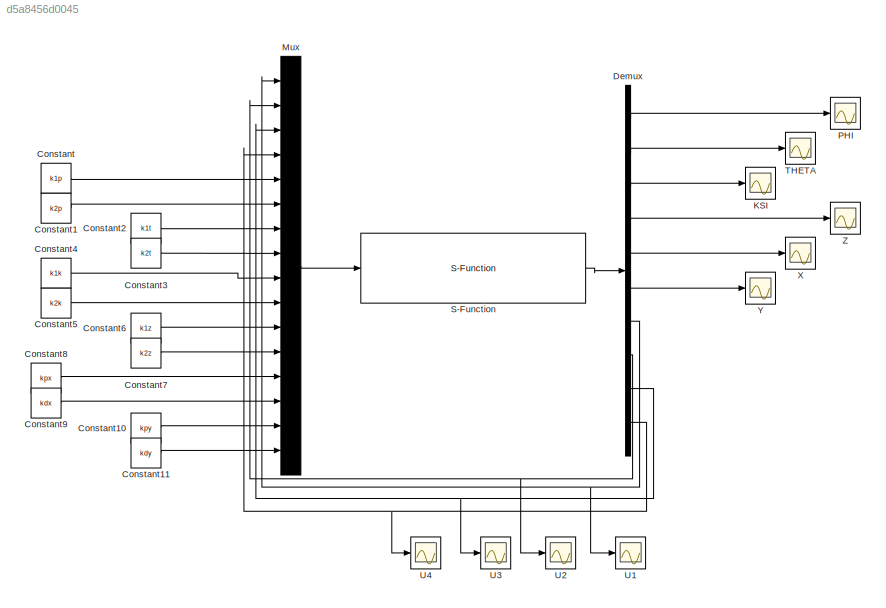
MODEL slx_d5a8456d0045
KIND model
CONFIG AbsTol = auto
CONFIG FixedStep = auto
CONFIG MaxStep = auto
CONFIG MinStep = auto
CONFIG RelTol = 1e-3
CONFIG SampleTimeConstraint = Unconstrained
CONFIG Solver = ode45
CONFIG SolverMode = Auto
CONFIG SolverName = ode45
CONFIG StartTime = 0.0
CONFIG StopTime = 15
BLOCK [Constant] Constant
  Value = k1p
BLOCK [Constant] Constant1
  Value = k2p
BLOCK [Constant] Constant10
  Value = kpy
BLOCK [Constant] Constant11
  Value = kdy
BLOCK [Constant] Constant2
  Value = k1t
BLOCK [Constant] Constant3
  Value = k2t
BLOCK [Constant] Constant4
  Value = k1k
BLOCK [Constant] Constant5
  Value = k2k
BLOCK [Constant] Constant6
  Value = k1z
BLOCK [Constant] Constant7
  Value = k2z
BLOCK [Constant] Constant8
  Value = kpx
BLOCK [Constant] Constant9
  Value = kdx
BLOCK [Demux] Demux
  DisplayOption = bar
  Outputs = 10
  Ports = [1, 10]
BLOCK [Scope] KSI
  Floating = off
  NumInputPorts = 1
  Ports = [1]
BLOCK [Mux] Mux
  DisplayOption = bar
  Inputs = 16
  Ports = [16, 1]
BLOCK [Scope] PHI
  Floating = off
  NumInputPorts = 1
  Ports = [1]
  SaveName = ScopeData2
  YMax = -22500
  YMin = -31000
BLOCK [S-Function] S-Function
  FunctionName = quadrotor_adrc_controller_finalwithzxy
  Ports = [1, 1]
BLOCK [Scope] THETA
  Floating = off
  NumInputPorts = 1
  Ports = [1]
  SaveName = ScopeData1
  YMax = 102
  YMin = 89
BLOCK [Scope] U1
  Floating = off
  NumInputPorts = 1
  Ports = [1]
  SaveName = ScopeData6
BLOCK [Scope] U2
  Floating = off
  NumInputPorts = 1
  Ports = [1]
  SaveName = ScopeData7
BLOCK [Scope] U3
  Floating = off
  NumInputPorts = 1
  Ports = [1]
  SaveName = ScopeData8
BLOCK [Scope] U4
  Floating = off
  NumInputPorts = 1
  Ports = [1]
  SaveName = ScopeData9
BLOCK [Scope] X
  Floating = off
  NumInputPorts = 1
  Ports = [1]
  SaveName = ScopeData4
BLOCK [Scope] Y
  Floating = off
  NumInputPorts = 1
  Ports = [1]
  SaveName = ScopeData5
  YMax = 27.5
  YMin = 0
BLOCK [Scope] Z
  Floating = off
  NumInputPorts = 1
  Ports = [1]
  SaveName = ScopeData3
  YMax = 467.5
  YMin = 415
LINE Constant10:1 -> Mux:15
LINE Constant11:1 -> Mux:16
LINE Constant1:1 -> Mux:6
LINE Constant2:1 -> Mux:7
LINE Constant3:1 -> Mux:8
LINE Constant4:1 -> Mux:9
LINE Constant5:1 -> Mux:10
LINE Constant6:1 -> Mux:11
LINE Constant7:1 -> Mux:12
LINE Constant8:1 -> Mux:13
LINE Constant9:1 -> Mux:14
LINE Constant:1 -> Mux:5
LINE Demux:1 -> PHI:1
NET Demux:10 -> Mux:4, U4:1
LINE Demux:2 -> THETA:1
LINE Demux:3 -> KSI:1
LINE Demux:4 -> Z:1
LINE Demux:5 -> X:1
LINE Demux:6 -> Y:1
NET Demux:7 -> Mux:1, U1:1
NET Demux:8 -> Mux:2, U2:1
NET Demux:9 -> Mux:3, U3:1
LINE Mux:1 -> S-Function:1
LINE S-Function:1 -> Demux:1
note: NET lines group one-source signal fan-out (src -> all destinations, sorted); 1:1 wires keep LINE
